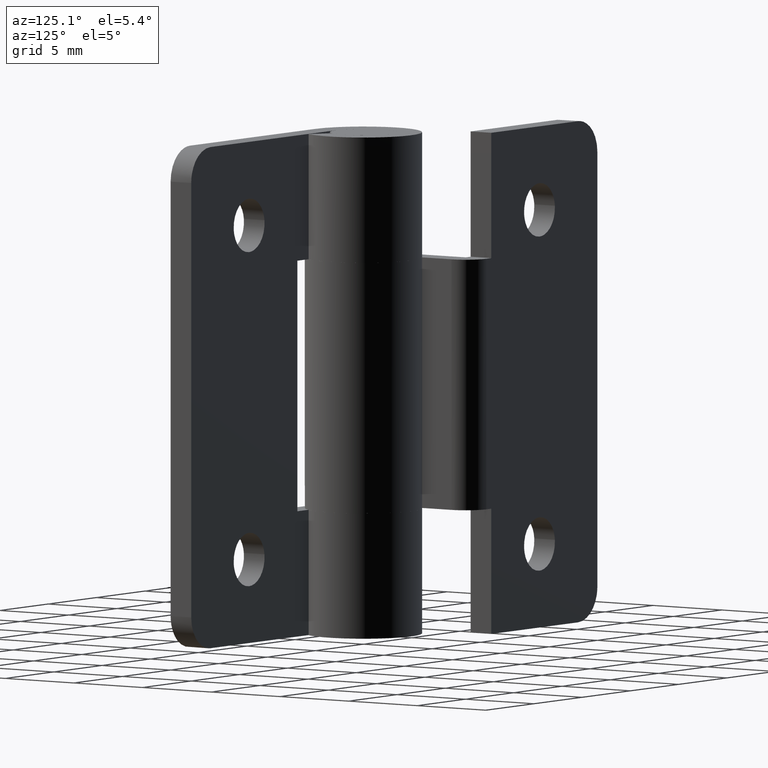
[diagram: clean part render]
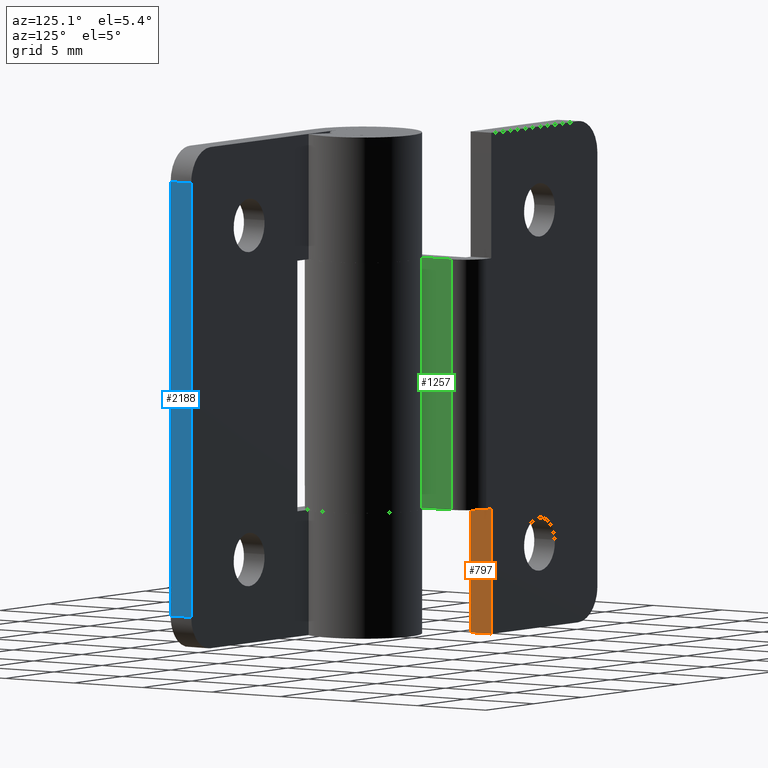
[diagram: same view with three faces highlighted in distinct colors, each labeled with its STEP entity id]
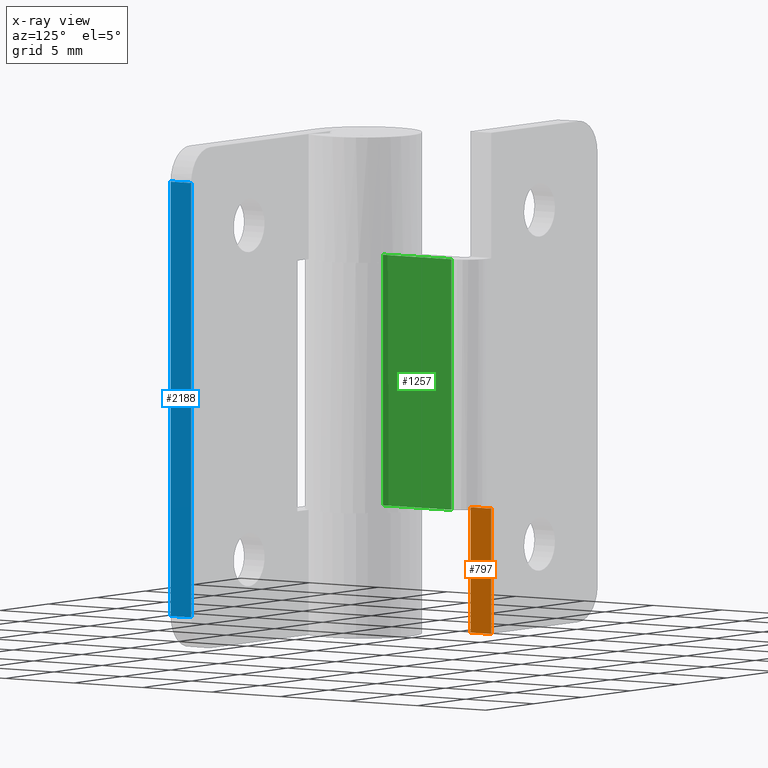
[diagram: x-ray of the same camera — body ghosted, the three highlighted faces saturated]
A machine part, auxiliary view with three faces highlighted in distinct colors.
The next image is the same camera in x-ray (body ghosted, the three faces saturated) — at least one of them is partly hidden behind the body in this view.
Their STEP definitions:

[orange] entity #797 — the highlighted face is a freeform B-spline surface patch.
#670=CARTESIAN_POINT('',(-4.0,5.0,7.500000000000000));
#671=VERTEX_POINT('',#670);
#677=CARTESIAN_POINT('',(-4.0,6.499998000000000,7.500000000000000));
#678=VERTEX_POINT('',#677);
#679=CARTESIAN_POINT('',(-4.0,6.499998000000000,7.500000000000000));
#680=CARTESIAN_POINT('',(-4.0,5.0,7.500000000000000));
#681=QUASI_UNIFORM_CURVE('',1,(#679,#680),.UNSPECIFIED.,.F.,.U.);
#682=EDGE_CURVE('',#678,#671,#681,.T.);
#770=CARTESIAN_POINT('',(-4.0,6.574922995759069,7.874624985463544));
#771=CARTESIAN_POINT('',(-4.0,6.574922995759069,-0.374625186629221));
#772=CARTESIAN_POINT('',(-4.0,4.925075057885040,7.874624985463544));
#773=CARTESIAN_POINT('',(-4.0,4.925075057885040,-0.374625186629221));
#774=B_SPLINE_SURFACE_WITH_KNOTS('',1,1,((#770,#772),(#771,#773)),.UNSPECIFIED.,.F.,.F.,.U.,(2,2),(2,2),(0.0,8.249250172092765),(0.041708280189335,0.958291690008342),.UNSPECIFIED.);
#775=CARTESIAN_POINT('',(-4.0,5.0,0.0));
#776=VERTEX_POINT('',#775);
#777=CARTESIAN_POINT('',(-4.0,5.0,7.500000000000000));
#778=CARTESIAN_POINT('',(-4.0,5.0,0.0));
#779=QUASI_UNIFORM_CURVE('',1,(#777,#778),.UNSPECIFIED.,.F.,.U.);
#780=EDGE_CURVE('',#671,#776,#779,.T.);
#781=ORIENTED_EDGE('',*,*,#780,.T.);
#782=CARTESIAN_POINT('',(-4.0,6.499998000000000,0.0));
#783=VERTEX_POINT('',#782);
#784=CARTESIAN_POINT('',(-4.0,6.499998000000000,0.0));
#785=CARTESIAN_POINT('',(-4.0,5.0,0.0));
#786=QUASI_UNIFORM_CURVE('',1,(#784,#785),.UNSPECIFIED.,.F.,.U.);
#787=EDGE_CURVE('',#783,#776,#786,.T.);
#788=ORIENTED_EDGE('',*,*,#787,.F.);
#789=CARTESIAN_POINT('',(-4.0,6.499998000000000,0.0));
#790=CARTESIAN_POINT('',(-4.0,6.499998000000000,7.500000000000000));
#791=QUASI_UNIFORM_CURVE('',1,(#789,#790),.UNSPECIFIED.,.F.,.U.);
#792=EDGE_CURVE('',#783,#678,#791,.T.);
#793=ORIENTED_EDGE('',*,*,#792,.T.);
#794=ORIENTED_EDGE('',*,*,#682,.T.);
#795=EDGE_LOOP('',(#781,#788,#793,#794));
#796=FACE_OUTER_BOUND('',#795,.T.);
#797=ADVANCED_FACE('',(#796),#774,.F.);

[blue] entity #2188 — the highlighted face is a freeform B-spline surface patch.
#1747=CARTESIAN_POINT('',(14.999992000000001,-2.0,28.0));
#1748=VERTEX_POINT('',#1747);
#1769=CARTESIAN_POINT('',(14.999992000000001,-3.500003000000000,28.0));
#1770=VERTEX_POINT('',#1769);
#1784=CARTESIAN_POINT('',(14.999992000000001,-2.0,28.0));
#1785=CARTESIAN_POINT('',(14.999992000000001,-3.500003000000000,28.0));
#1786=QUASI_UNIFORM_CURVE('',1,(#1784,#1785),.UNSPECIFIED.,.F.,.U.);
#1787=EDGE_CURVE('',#1748,#1770,#1786,.T.);
#1806=CARTESIAN_POINT('',(14.999992000000001,-2.0,2.0));
#1807=VERTEX_POINT('',#1806);
#1823=CARTESIAN_POINT('',(14.999992000000001,-3.500003000000000,2.0));
#1824=VERTEX_POINT('',#1823);
#1825=CARTESIAN_POINT('',(14.999992000000001,-3.500003000000000,2.0));
#1826=CARTESIAN_POINT('',(14.999992000000001,-2.0,2.0));
#1827=QUASI_UNIFORM_CURVE('',1,(#1825,#1826),.UNSPECIFIED.,.F.,.U.);
#1828=EDGE_CURVE('',#1824,#1807,#1827,.T.);
#2169=CARTESIAN_POINT('',(14.999992000000001,-3.574928259590343,29.298699949606959));
#2170=CARTESIAN_POINT('',(14.999992000000001,-3.574928259590343,0.701299353018703));
#2171=CARTESIAN_POINT('',(14.999992000000001,-1.925074807465017,29.298699949606959));
#2172=CARTESIAN_POINT('',(14.999992000000001,-1.925074807465017,0.701299353018703));
#2173=B_SPLINE_SURFACE_WITH_KNOTS('',1,1,((#2169,#2171),(#2170,#2172)),.UNSPECIFIED.,.F.,.F.,.U.,(2,2),(2,2),(0.0,28.597400596588251),(0.041708272366598,0.958291690380499),.UNSPECIFIED.);
#2174=CARTESIAN_POINT('',(14.999992000000001,-3.500003000000000,28.0));
#2175=CARTESIAN_POINT('',(14.999992000000001,-3.500003000000000,2.0));
#2176=QUASI_UNIFORM_CURVE('',1,(#2174,#2175),.UNSPECIFIED.,.F.,.U.);
#2177=EDGE_CURVE('',#1770,#1824,#2176,.T.);
#2178=ORIENTED_EDGE('',*,*,#2177,.T.);
#2179=ORIENTED_EDGE('',*,*,#1828,.T.);
#2180=CARTESIAN_POINT('',(14.999992000000001,-2.0,28.0));
#2181=CARTESIAN_POINT('',(14.999992000000001,-2.0,2.0));
#2182=QUASI_UNIFORM_CURVE('',1,(#2180,#2181),.UNSPECIFIED.,.F.,.U.);
#2183=EDGE_CURVE('',#1748,#1807,#2182,.T.);
#2184=ORIENTED_EDGE('',*,*,#2183,.F.);
#2185=ORIENTED_EDGE('',*,*,#1787,.T.);
#2186=EDGE_LOOP('',(#2178,#2179,#2184,#2185));
#2187=FACE_OUTER_BOUND('',#2186,.T.);
#2188=ADVANCED_FACE('',(#2187),#2173,.T.);

[green] entity #1257 — the highlighted face is a freeform B-spline surface patch.
#691=CARTESIAN_POINT('',(-2.0,4.999998000000001,7.500000000000000));
#692=VERTEX_POINT('',#691);
#706=CARTESIAN_POINT('',(-2.0,0.0,7.500000000000000));
#707=VERTEX_POINT('',#706);
#708=CARTESIAN_POINT('',(-2.0,4.999998000000001,7.500000000000000));
#709=CARTESIAN_POINT('',(-2.0,0.0,7.500000000000000));
#710=QUASI_UNIFORM_CURVE('',1,(#708,#709),.UNSPECIFIED.,.F.,.U.);
#711=EDGE_CURVE('',#692,#707,#710,.T.);
#847=CARTESIAN_POINT('',(-2.0,0.0,22.500000000000000));
#848=VERTEX_POINT('',#847);
#868=CARTESIAN_POINT('',(-2.0,4.999998000000001,22.500000000000000));
#869=VERTEX_POINT('',#868);
#870=CARTESIAN_POINT('',(-2.0,0.0,22.500000000000000));
#871=CARTESIAN_POINT('',(-2.0,4.999998000000001,22.500000000000000));
#872=QUASI_UNIFORM_CURVE('',1,(#870,#871),.UNSPECIFIED.,.F.,.U.);
#873=EDGE_CURVE('',#848,#869,#872,.T.);
#954=CARTESIAN_POINT('',(-2.0,4.999998000000001,7.500000000000000));
#955=CARTESIAN_POINT('',(-2.0,4.999998000000001,22.500000000000000));
#956=QUASI_UNIFORM_CURVE('',1,(#954,#955),.UNSPECIFIED.,.F.,.U.);
#957=EDGE_CURVE('',#692,#869,#956,.T.);
#1237=CARTESIAN_POINT('',(-2.0,0.0,22.500000000000000));
#1238=CARTESIAN_POINT('',(-2.0,0.0,7.500000000000000));
#1239=QUASI_UNIFORM_CURVE('',1,(#1237,#1238),.UNSPECIFIED.,.F.,.U.);
#1240=EDGE_CURVE('',#848,#707,#1239,.T.);
#1246=CARTESIAN_POINT('',(-2.0,-0.249749890409033,23.249249970927089));
#1247=CARTESIAN_POINT('',(-2.0,-0.249749890409033,6.750749626741559));
#1248=CARTESIAN_POINT('',(-2.0,5.249748024519432,23.249249970927089));
#1249=CARTESIAN_POINT('',(-2.0,5.249748024519432,6.750749626741559));
#1250=B_SPLINE_SURFACE_WITH_KNOTS('',1,1,((#1246,#1248),(#1247,#1249)),.UNSPECIFIED.,.F.,.F.,.U.,(2,2),(2,2),(0.0,16.498500344185530),(0.0,5.499497914928465),.UNSPECIFIED.);
#1251=ORIENTED_EDGE('',*,*,#711,.F.);
#1252=ORIENTED_EDGE('',*,*,#957,.T.);
#1253=ORIENTED_EDGE('',*,*,#873,.F.);
#1254=ORIENTED_EDGE('',*,*,#1240,.T.);
#1255=EDGE_LOOP('',(#1251,#1252,#1253,#1254));
#1256=FACE_OUTER_BOUND('',#1255,.T.);
#1257=ADVANCED_FACE('',(#1256),#1250,.T.);